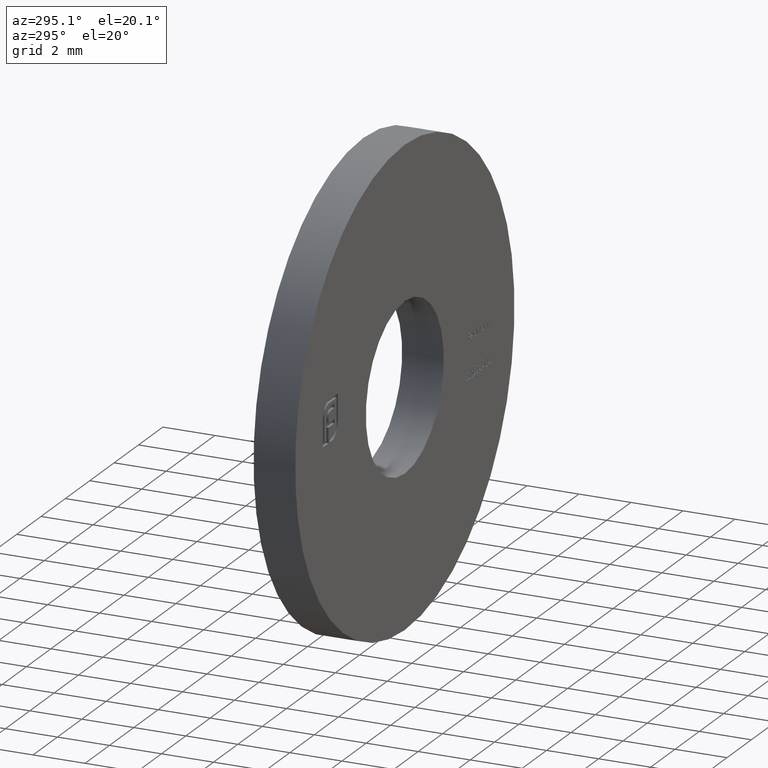
[diagram: clean part render]
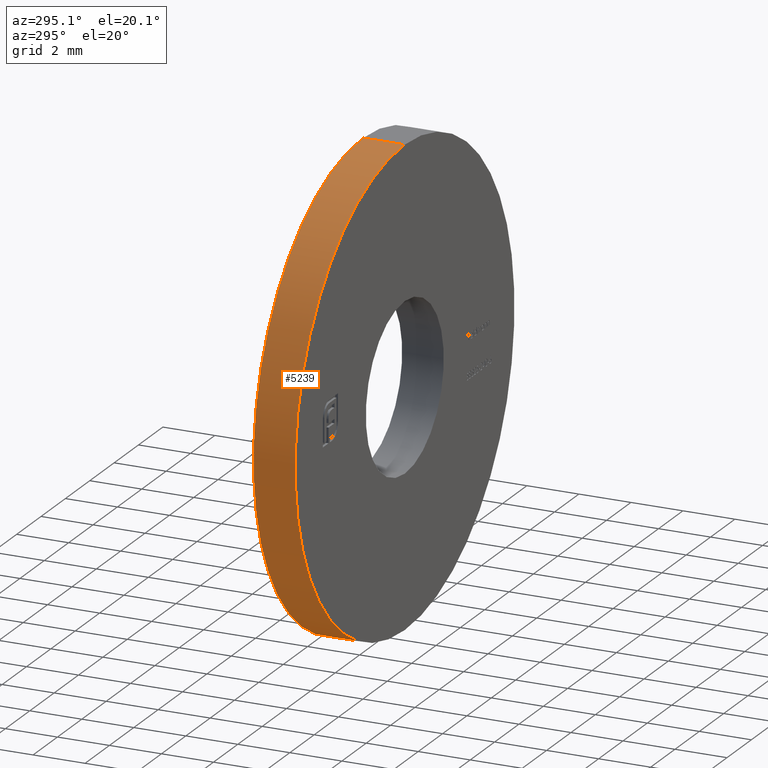
[diagram: same view with one face highlighted and labeled with its STEP entity id]
A machine part, auxiliary view. The second image highlights one B-rep face of the part: STEP entity #5239.
In plain terms, the highlighted cylindrical surface (partial cylindrical patch) has radius 9 mm, axis along (-0, -1, -0).
Its self-contained STEP definition (entity closure, byte-faithful):
#105 = EDGE_CURVE ( 'NONE', #10148, #1503, #5996, .T. ) ;
#477 = VECTOR ( 'NONE', #15005, 1000.000000000000000 ) ;
#836 = CARTESIAN_POINT ( 'NONE',  ( 0.000000000000000000, 0.8000000000000000444, 0.000000000000000000 ) ) ;
#1436 = FACE_OUTER_BOUND ( 'NONE', #13795, .T. ) ;
#1503 = VERTEX_POINT ( 'NONE', #7740 ) ;
#1748 = CARTESIAN_POINT ( 'NONE',  ( 1.102182119232617714E-15, 0.8000000000000000444, 9.000000000000000000 ) ) ;
#2050 = EDGE_CURVE ( 'NONE', #11362, #7289, #9572, .T. ) ;
#2175 = DIRECTION ( 'NONE',  ( 0.000000000000000000, 0.000000000000000000, 1.000000000000000000 ) ) ;
#2734 = CARTESIAN_POINT ( 'NONE',  ( 0.000000000000000000, 0.8000000000000000444, -9.000000000000000000 ) ) ;
#3407 = CARTESIAN_POINT ( 'NONE',  ( 1.102182119232617714E-15, 0.8000000000000000444, 9.000000000000000000 ) ) ;
#3859 = EDGE_CURVE ( 'NONE', #7289, #1503, #7931, .T. ) ;
#4099 = DIRECTION ( 'NONE',  ( -0.000000000000000000, -1.000000000000000000, -0.000000000000000000 ) ) ;
#4175 = CARTESIAN_POINT ( 'NONE',  ( 0.000000000000000000, 0.8000000000000000444, 0.000000000000000000 ) ) ;
#4304 = DIRECTION ( 'NONE',  ( 0.000000000000000000, 0.000000000000000000, 1.000000000000000000 ) ) ;
#5239 = ADVANCED_FACE ( 'NONE', ( #1436 ), #14203, .T. ) ;
#5549 = DIRECTION ( 'NONE',  ( -0.000000000000000000, -1.000000000000000000, -0.000000000000000000 ) ) ;
#5619 = AXIS2_PLACEMENT_3D ( 'NONE', #4175, #5549, #9708 ) ;
#5996 = LINE ( 'NONE', #3407, #477 ) ;
#6399 = CARTESIAN_POINT ( 'NONE',  ( 0.000000000000000000, -0.8000000000000000444, -9.000000000000000000 ) ) ;
#7289 = VERTEX_POINT ( 'NONE', #6399 ) ;
#7740 = CARTESIAN_POINT ( 'NONE',  ( 1.102182119232617714E-15, -0.8000000000000000444, 9.000000000000000000 ) ) ;
#7931 = CIRCLE ( 'NONE', #13295, 9.000000000000000000 ) ;
#8248 = DIRECTION ( 'NONE',  ( 0.000000000000000000, 1.000000000000000000, 0.000000000000000000 ) ) ;
#8649 = DIRECTION ( 'NONE',  ( 0.000000000000000000, 1.000000000000000000, 0.000000000000000000 ) ) ;
#8723 = CARTESIAN_POINT ( 'NONE',  ( 0.000000000000000000, 0.8000000000000000444, -9.000000000000000000 ) ) ;
#8955 = EDGE_CURVE ( 'NONE', #11362, #10148, #9903, .T. ) ;
#9572 = LINE ( 'NONE', #2734, #16421 ) ;
#9708 = DIRECTION ( 'NONE',  ( 0.000000000000000000, 0.000000000000000000, -1.000000000000000000 ) ) ;
#9903 = CIRCLE ( 'NONE', #11913, 9.000000000000000000 ) ;
#10148 = VERTEX_POINT ( 'NONE', #1748 ) ;
#11362 = VERTEX_POINT ( 'NONE', #8723 ) ;
#11484 = ORIENTED_EDGE ( 'NONE', *, *, #2050, .T. ) ;
#11905 = CARTESIAN_POINT ( 'NONE',  ( 0.000000000000000000, -0.8000000000000000444, 0.000000000000000000 ) ) ;
#11913 = AXIS2_PLACEMENT_3D ( 'NONE', #836, #8649, #2175 ) ;
#13295 = AXIS2_PLACEMENT_3D ( 'NONE', #11905, #8248, #4304 ) ;
#13687 = ORIENTED_EDGE ( 'NONE', *, *, #105, .F. ) ;
#13795 = EDGE_LOOP ( 'NONE', ( #13687, #14124, #11484, #13855 ) ) ;
#13855 = ORIENTED_EDGE ( 'NONE', *, *, #3859, .T. ) ;
#14124 = ORIENTED_EDGE ( 'NONE', *, *, #8955, .F. ) ;
#14203 = CYLINDRICAL_SURFACE ( 'NONE', #5619, 9.000000000000000000 ) ;
#15005 = DIRECTION ( 'NONE',  ( -0.000000000000000000, -1.000000000000000000, -0.000000000000000000 ) ) ;
#16421 = VECTOR ( 'NONE', #4099, 1000.000000000000000 ) ;